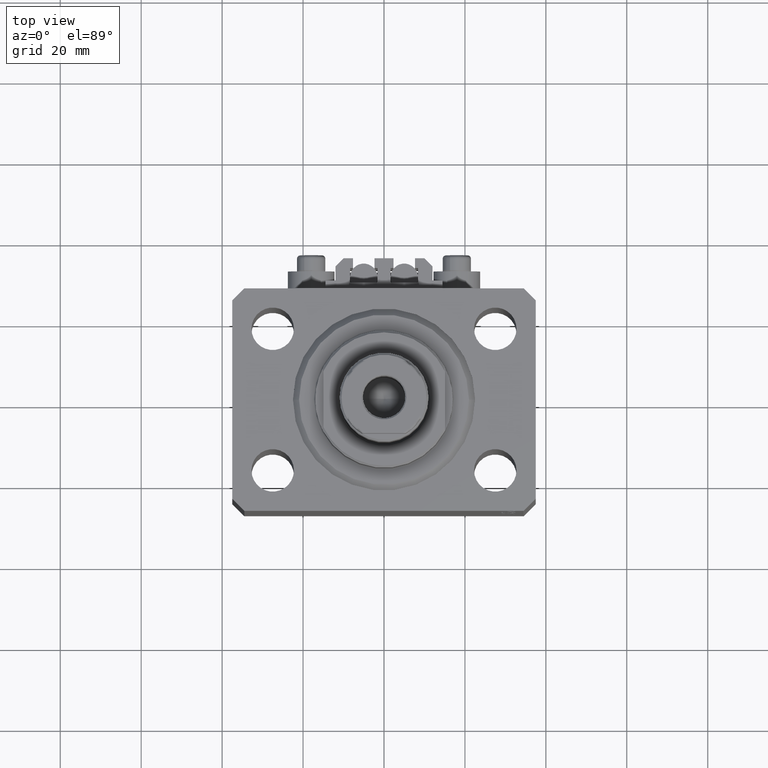
[diagram: clean part render]
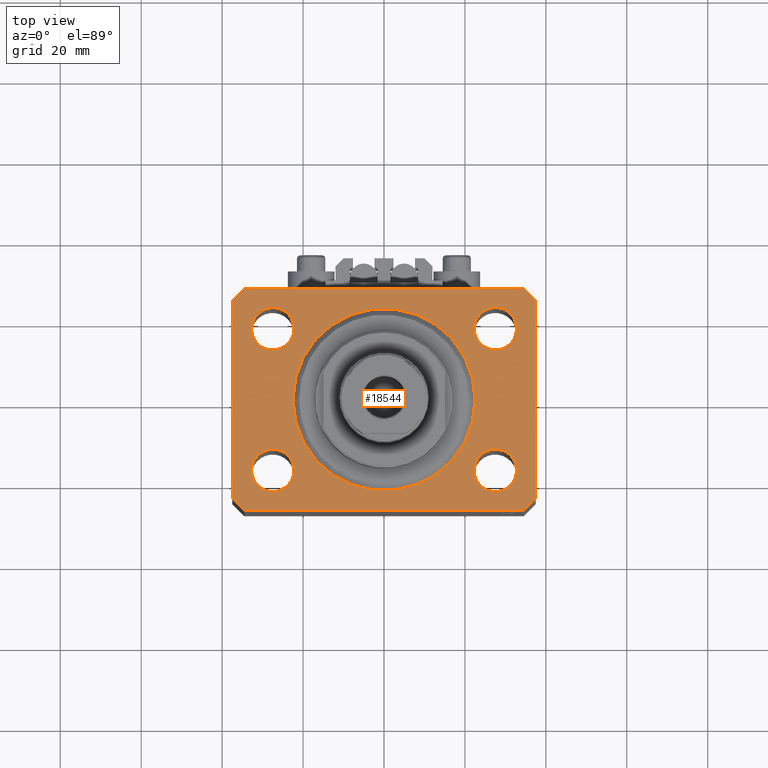
[diagram: same view with one face highlighted and labeled with its STEP entity id]
A machine part, top view. The second image highlights one B-rep face of the part: STEP entity #18544.
In plain terms, the highlighted planar face has unit normal (0, 0, 1).
Its self-contained STEP definition (entity closure, byte-faithful):
#304 = EDGE_CURVE ( 'NONE', #38863, #33741, #42196, .T. ) ;
#793 = PLANE ( 'NONE',  #41364 ) ;
#886 = LINE ( 'NONE', #15803, #4087 ) ;
#961 = EDGE_CURVE ( 'NONE', #47644, #32541, #19054, .T. ) ;
#1045 = FACE_BOUND ( 'NONE', #6373, .T. ) ;
#1383 = VERTEX_POINT ( 'NONE', #25034 ) ;
#1902 = DIRECTION ( 'NONE',  ( 1.000000000000000000, 0.000000000000000000, 0.000000000000000000 ) ) ;
#1987 = ORIENTED_EDGE ( 'NONE', *, *, #304, .T. ) ;
#2097 = EDGE_CURVE ( 'NONE', #1383, #47644, #14691, .T. ) ;
#2591 = VECTOR ( 'NONE', #22765, 1000.000000000000000 ) ;
#2701 = DIRECTION ( 'NONE',  ( 1.000000000000000000, 0.000000000000000000, 0.000000000000000000 ) ) ;
#2736 = LINE ( 'NONE', #14235, #9376 ) ;
#2927 = CARTESIAN_POINT ( 'NONE',  ( 0.000000000000000000, 0.000000000000000000, 0.000000000000000000 ) ) ;
#3098 = DIRECTION ( 'NONE',  ( 0.000000000000000000, 0.000000000000000000, 1.000000000000000000 ) ) ;
#3317 = EDGE_CURVE ( 'NONE', #23287, #46768, #45369, .T. ) ;
#3370 = CARTESIAN_POINT ( 'NONE',  ( 37.49999999999999289, -24.50000000000000000, 0.000000000000000000 ) ) ;
#3942 = ORIENTED_EDGE ( 'NONE', *, *, #22887, .T. ) ;
#4087 = VECTOR ( 'NONE', #19937, 1000.000000000000114 ) ;
#4582 = CARTESIAN_POINT ( 'NONE',  ( -22.25000000000000000, 17.49999999999999645, 0.000000000000000000 ) ) ;
#4698 = ORIENTED_EDGE ( 'NONE', *, *, #42302, .F. ) ;
#5174 = DIRECTION ( 'NONE',  ( 1.000000000000000000, 0.000000000000000000, -0.000000000000000000 ) ) ;
#5280 = AXIS2_PLACEMENT_3D ( 'NONE', #7002, #3098, #44151 ) ;
#5388 = EDGE_LOOP ( 'NONE', ( #3942, #8526, #6719, #12965, #20577, #43024, #12672, #1987 ) ) ;
#6373 = EDGE_LOOP ( 'NONE', ( #44980, #26739 ) ) ;
#6518 = EDGE_LOOP ( 'NONE', ( #12388, #4698 ) ) ;
#6576 = CARTESIAN_POINT ( 'NONE',  ( -34.49999999999999289, 27.50000000000000000, 0.000000000000000000 ) ) ;
#6719 = ORIENTED_EDGE ( 'NONE', *, *, #35646, .T. ) ;
#6884 = CARTESIAN_POINT ( 'NONE',  ( 34.49999999999999289, -27.49999999999999645, 0.000000000000000000 ) ) ;
#7002 = CARTESIAN_POINT ( 'NONE',  ( -27.49999999999999289, -17.50000000000000000, 0.000000000000000000 ) ) ;
#7067 = VECTOR ( 'NONE', #31682, 1000.000000000000114 ) ;
#7115 = LINE ( 'NONE', #7830, #2591 ) ;
#7232 = CIRCLE ( 'NONE', #43112, 5.250000000000000888 ) ;
#7620 = ORIENTED_EDGE ( 'NONE', *, *, #32396, .F. ) ;
#7651 = CARTESIAN_POINT ( 'NONE',  ( -22.50000000000000355, 2.755455298081545172E-15, 0.000000000000000000 ) ) ;
#7830 = CARTESIAN_POINT ( 'NONE',  ( 37.49999999999999289, -24.50000000000000000, 0.000000000000000000 ) ) ;
#8483 = CARTESIAN_POINT ( 'NONE',  ( -22.24999999999999289, -17.50000000000000000, 0.000000000000000000 ) ) ;
#8526 = ORIENTED_EDGE ( 'NONE', *, *, #8966, .T. ) ;
#8755 = CARTESIAN_POINT ( 'NONE',  ( 27.50000000000000000, 17.49999999999999289, 0.000000000000000000 ) ) ;
#8848 = CARTESIAN_POINT ( 'NONE',  ( 0.000000000000000000, 0.000000000000000000, 0.000000000000000000 ) ) ;
#8966 = EDGE_CURVE ( 'NONE', #36146, #43843, #13193, .T. ) ;
#9184 = CIRCLE ( 'NONE', #5280, 5.250000000000000888 ) ;
#9376 = VECTOR ( 'NONE', #9581, 1000.000000000000000 ) ;
#9581 = DIRECTION ( 'NONE',  ( -1.000000000000000000, 0.000000000000000000, 0.000000000000000000 ) ) ;
#9689 = CARTESIAN_POINT ( 'NONE',  ( 37.50000000000051870, 24.49999999999995381, 0.000000000000000000 ) ) ;
#9908 = ORIENTED_EDGE ( 'NONE', *, *, #47511, .F. ) ;
#10076 = CARTESIAN_POINT ( 'NONE',  ( 34.50000000000056843, 27.50000000000000000, 0.000000000000000000 ) ) ;
#10384 = CIRCLE ( 'NONE', #15089, 22.50000000000000355 ) ;
#10765 = DIRECTION ( 'NONE',  ( 0.7071067811865483499, -0.7071067811865466846, 0.000000000000000000 ) ) ;
#11742 = VECTOR ( 'NONE', #33933, 1000.000000000000000 ) ;
#11744 = VECTOR ( 'NONE', #17376, 1000.000000000000000 ) ;
#12301 = AXIS2_PLACEMENT_3D ( 'NONE', #47632, #21738, #47887 ) ;
#12314 = EDGE_CURVE ( 'NONE', #46768, #23287, #9184, .T. ) ;
#12388 = ORIENTED_EDGE ( 'NONE', *, *, #18420, .F. ) ;
#12672 = ORIENTED_EDGE ( 'NONE', *, *, #22013, .T. ) ;
#12965 = ORIENTED_EDGE ( 'NONE', *, *, #2097, .T. ) ;
#13193 = LINE ( 'NONE', #6576, #14725 ) ;
#14030 = CARTESIAN_POINT ( 'NONE',  ( -27.50000000000000000, 17.49999999999999645, 0.000000000000000000 ) ) ;
#14235 = CARTESIAN_POINT ( 'NONE',  ( 34.50000000000056843, 27.50000000000000000, 0.000000000000000000 ) ) ;
#14691 = LINE ( 'NONE', #25200, #39734 ) ;
#14725 = VECTOR ( 'NONE', #39556, 1000.000000000000000 ) ;
#15089 = AXIS2_PLACEMENT_3D ( 'NONE', #2927, #43744, #2701 ) ;
#15803 = CARTESIAN_POINT ( 'NONE',  ( 34.49999999999999289, -27.49999999999999645, 0.000000000000000000 ) ) ;
#15958 = FACE_BOUND ( 'NONE', #6518, .T. ) ;
#17222 = AXIS2_PLACEMENT_3D ( 'NONE', #47167, #21275, #35917 ) ;
#17376 = DIRECTION ( 'NONE',  ( 0.000000000000000000, -1.000000000000000000, 0.000000000000000000 ) ) ;
#17831 = AXIS2_PLACEMENT_3D ( 'NONE', #8755, #35384, #1902 ) ;
#18420 = EDGE_CURVE ( 'NONE', #46115, #33503, #39831, .T. ) ;
#18544 = ADVANCED_FACE ( 'NONE', ( #27428, #42328, #1045, #45271, #15958, #45751 ), #793, .T. ) ;
#18976 = AXIS2_PLACEMENT_3D ( 'NONE', #19813, #34697, #27365 ) ;
#19054 = LINE ( 'NONE', #22710, #11742 ) ;
#19813 = CARTESIAN_POINT ( 'NONE',  ( 27.49999999999999289, -17.50000000000000000, 0.000000000000000000 ) ) ;
#19881 = VERTEX_POINT ( 'NONE', #36623 ) ;
#19937 = DIRECTION ( 'NONE',  ( 0.7071067811865474617, 0.7071067811865474617, 0.000000000000000000 ) ) ;
#20577 = ORIENTED_EDGE ( 'NONE', *, *, #961, .T. ) ;
#20658 = EDGE_CURVE ( 'NONE', #45669, #27189, #7232, .T. ) ;
#20738 = ORIENTED_EDGE ( 'NONE', *, *, #20658, .F. ) ;
#21275 = DIRECTION ( 'NONE',  ( 0.000000000000000000, 0.000000000000000000, 1.000000000000000000 ) ) ;
#21738 = DIRECTION ( 'NONE',  ( 0.000000000000000000, 0.000000000000000000, 1.000000000000000000 ) ) ;
#22000 = CARTESIAN_POINT ( 'NONE',  ( -34.49999999999998579, -27.49999999999999645, 0.000000000000000000 ) ) ;
#22013 = EDGE_CURVE ( 'NONE', #25491, #38863, #7115, .T. ) ;
#22060 = EDGE_CURVE ( 'NONE', #44978, #36785, #33793, .T. ) ;
#22710 = CARTESIAN_POINT ( 'NONE',  ( -34.49999999999998579, -27.49999999999999645, 0.000000000000000000 ) ) ;
#22765 = DIRECTION ( 'NONE',  ( 1.076236605503979380E-14, 1.000000000000000000, 0.000000000000000000 ) ) ;
#22887 = EDGE_CURVE ( 'NONE', #33741, #36146, #2736, .T. ) ;
#23048 = ORIENTED_EDGE ( 'NONE', *, *, #3317, .F. ) ;
#23287 = VERTEX_POINT ( 'NONE', #34875 ) ;
#23869 = VERTEX_POINT ( 'NONE', #7651 ) ;
#24868 = CIRCLE ( 'NONE', #39674, 5.250000000000000888 ) ;
#25034 = CARTESIAN_POINT ( 'NONE',  ( -37.49999999999999289, -24.50000000000000000, 0.000000000000000000 ) ) ;
#25148 = DIRECTION ( 'NONE',  ( 1.000000000000000000, 0.000000000000000000, 0.000000000000000000 ) ) ;
#25200 = CARTESIAN_POINT ( 'NONE',  ( -37.49999999999999289, -24.50000000000000000, 0.000000000000000000 ) ) ;
#25355 = CARTESIAN_POINT ( 'NONE',  ( 37.50000000000051870, 24.49999999999995381, 0.000000000000000000 ) ) ;
#25378 = DIRECTION ( 'NONE',  ( 0.000000000000000000, 0.000000000000000000, 1.000000000000000000 ) ) ;
#25491 = VERTEX_POINT ( 'NONE', #3370 ) ;
#26451 = DIRECTION ( 'NONE',  ( 1.000000000000000000, 0.000000000000000000, 0.000000000000000000 ) ) ;
#26573 = CIRCLE ( 'NONE', #17222, 5.250000000000000888 ) ;
#26739 = ORIENTED_EDGE ( 'NONE', *, *, #35550, .F. ) ;
#27189 = VERTEX_POINT ( 'NONE', #47666 ) ;
#27365 = DIRECTION ( 'NONE',  ( 1.000000000000000000, 0.000000000000000000, 0.000000000000000000 ) ) ;
#27428 = FACE_BOUND ( 'NONE', #35932, .T. ) ;
#27693 = CARTESIAN_POINT ( 'NONE',  ( 27.50000000000000000, 17.49999999999999289, 0.000000000000000000 ) ) ;
#28476 = ORIENTED_EDGE ( 'NONE', *, *, #45430, .F. ) ;
#28843 = CARTESIAN_POINT ( 'NONE',  ( -37.49999999999999289, 24.50000000000000000, 0.000000000000000000 ) ) ;
#28939 = DIRECTION ( 'NONE',  ( 0.000000000000000000, 0.000000000000000000, 1.000000000000000000 ) ) ;
#29880 = CARTESIAN_POINT ( 'NONE',  ( 32.74999999999999289, -17.50000000000000000, 0.000000000000000000 ) ) ;
#30229 = CARTESIAN_POINT ( 'NONE',  ( -34.49999999999999289, 27.50000000000000000, 0.000000000000000000 ) ) ;
#30823 = ORIENTED_EDGE ( 'NONE', *, *, #12314, .F. ) ;
#31102 = CIRCLE ( 'NONE', #17831, 5.250000000000000888 ) ;
#31682 = DIRECTION ( 'NONE',  ( -0.7071067811865364705, 0.7071067811865584529, 0.000000000000000000 ) ) ;
#32396 = EDGE_CURVE ( 'NONE', #23869, #19881, #10384, .T. ) ;
#32541 = VERTEX_POINT ( 'NONE', #6884 ) ;
#33503 = VERTEX_POINT ( 'NONE', #41150 ) ;
#33741 = VERTEX_POINT ( 'NONE', #10076 ) ;
#33793 = CIRCLE ( 'NONE', #18976, 5.250000000000000888 ) ;
#33933 = DIRECTION ( 'NONE',  ( 1.000000000000000000, 0.000000000000000000, 0.000000000000000000 ) ) ;
#34023 = DIRECTION ( 'NONE',  ( 0.000000000000000000, 0.000000000000000000, 1.000000000000000000 ) ) ;
#34697 = DIRECTION ( 'NONE',  ( 0.000000000000000000, 0.000000000000000000, 1.000000000000000000 ) ) ;
#34875 = CARTESIAN_POINT ( 'NONE',  ( -32.74999999999999289, -17.50000000000000000, 0.000000000000000000 ) ) ;
#35124 = AXIS2_PLACEMENT_3D ( 'NONE', #14030, #28939, #39665 ) ;
#35259 = DIRECTION ( 'NONE',  ( 0.000000000000000000, 0.000000000000000000, 1.000000000000000000 ) ) ;
#35384 = DIRECTION ( 'NONE',  ( 0.000000000000000000, 0.000000000000000000, 1.000000000000000000 ) ) ;
#35550 = EDGE_CURVE ( 'NONE', #36785, #44978, #26573, .T. ) ;
#35646 = EDGE_CURVE ( 'NONE', #43843, #1383, #39347, .T. ) ;
#35698 = EDGE_LOOP ( 'NONE', ( #20738, #28476 ) ) ;
#35917 = DIRECTION ( 'NONE',  ( 1.000000000000000000, 0.000000000000000000, 0.000000000000000000 ) ) ;
#35932 = EDGE_LOOP ( 'NONE', ( #9908, #7620 ) ) ;
#36146 = VERTEX_POINT ( 'NONE', #30229 ) ;
#36623 = CARTESIAN_POINT ( 'NONE',  ( 22.50000000000000355, 0.000000000000000000, 0.000000000000000000 ) ) ;
#36785 = VERTEX_POINT ( 'NONE', #45615 ) ;
#36863 = CARTESIAN_POINT ( 'NONE',  ( -27.49999999999999289, -17.50000000000000000, 0.000000000000000000 ) ) ;
#37248 = CARTESIAN_POINT ( 'NONE',  ( 32.75000000000000000, 17.49999999999999289, 0.000000000000000000 ) ) ;
#38193 = EDGE_CURVE ( 'NONE', #32541, #25491, #886, .T. ) ;
#38432 = DIRECTION ( 'NONE',  ( 1.000000000000000000, 0.000000000000000000, 0.000000000000000000 ) ) ;
#38650 = DIRECTION ( 'NONE',  ( 0.000000000000000000, 0.000000000000000000, 1.000000000000000000 ) ) ;
#38863 = VERTEX_POINT ( 'NONE', #25355 ) ;
#39347 = LINE ( 'NONE', #28843, #11744 ) ;
#39556 = DIRECTION ( 'NONE',  ( -0.7071067811865471286, -0.7071067811865479058, 0.000000000000000000 ) ) ;
#39665 = DIRECTION ( 'NONE',  ( 1.000000000000000000, 0.000000000000000000, 0.000000000000000000 ) ) ;
#39674 = AXIS2_PLACEMENT_3D ( 'NONE', #40882, #34023, #26451 ) ;
#39734 = VECTOR ( 'NONE', #10765, 1000.000000000000000 ) ;
#39831 = CIRCLE ( 'NONE', #35124, 5.250000000000000888 ) ;
#40882 = CARTESIAN_POINT ( 'NONE',  ( -27.50000000000000000, 17.49999999999999645, 0.000000000000000000 ) ) ;
#41150 = CARTESIAN_POINT ( 'NONE',  ( -32.75000000000000000, 17.49999999999999645, 0.000000000000000000 ) ) ;
#41364 = AXIS2_PLACEMENT_3D ( 'NONE', #8848, #38650, #5174 ) ;
#42196 = LINE ( 'NONE', #9689, #7067 ) ;
#42302 = EDGE_CURVE ( 'NONE', #33503, #46115, #24868, .T. ) ;
#42328 = FACE_BOUND ( 'NONE', #44972, .T. ) ;
#43024 = ORIENTED_EDGE ( 'NONE', *, *, #38193, .T. ) ;
#43112 = AXIS2_PLACEMENT_3D ( 'NONE', #27693, #35259, #38432 ) ;
#43744 = DIRECTION ( 'NONE',  ( 0.000000000000000000, 0.000000000000000000, 1.000000000000000000 ) ) ;
#43843 = VERTEX_POINT ( 'NONE', #47209 ) ;
#44151 = DIRECTION ( 'NONE',  ( 1.000000000000000000, 0.000000000000000000, 0.000000000000000000 ) ) ;
#44972 = EDGE_LOOP ( 'NONE', ( #30823, #23048 ) ) ;
#44978 = VERTEX_POINT ( 'NONE', #29880 ) ;
#44980 = ORIENTED_EDGE ( 'NONE', *, *, #22060, .F. ) ;
#45271 = FACE_BOUND ( 'NONE', #35698, .T. ) ;
#45369 = CIRCLE ( 'NONE', #46159, 5.250000000000000888 ) ;
#45430 = EDGE_CURVE ( 'NONE', #27189, #45669, #31102, .T. ) ;
#45615 = CARTESIAN_POINT ( 'NONE',  ( 22.24999999999999289, -17.50000000000000000, 0.000000000000000000 ) ) ;
#45669 = VERTEX_POINT ( 'NONE', #37248 ) ;
#45751 = FACE_OUTER_BOUND ( 'NONE', #5388, .T. ) ;
#46115 = VERTEX_POINT ( 'NONE', #4582 ) ;
#46159 = AXIS2_PLACEMENT_3D ( 'NONE', #36863, #25378, #25148 ) ;
#46625 = CIRCLE ( 'NONE', #12301, 22.50000000000000355 ) ;
#46768 = VERTEX_POINT ( 'NONE', #8483 ) ;
#47167 = CARTESIAN_POINT ( 'NONE',  ( 27.49999999999999289, -17.50000000000000000, 0.000000000000000000 ) ) ;
#47209 = CARTESIAN_POINT ( 'NONE',  ( -37.49999999999999289, 24.50000000000000000, 0.000000000000000000 ) ) ;
#47511 = EDGE_CURVE ( 'NONE', #19881, #23869, #46625, .T. ) ;
#47632 = CARTESIAN_POINT ( 'NONE',  ( 0.000000000000000000, 0.000000000000000000, 0.000000000000000000 ) ) ;
#47644 = VERTEX_POINT ( 'NONE', #22000 ) ;
#47666 = CARTESIAN_POINT ( 'NONE',  ( 22.25000000000000000, 17.49999999999999289, 0.000000000000000000 ) ) ;
#47887 = DIRECTION ( 'NONE',  ( 1.000000000000000000, 0.000000000000000000, 0.000000000000000000 ) ) ;